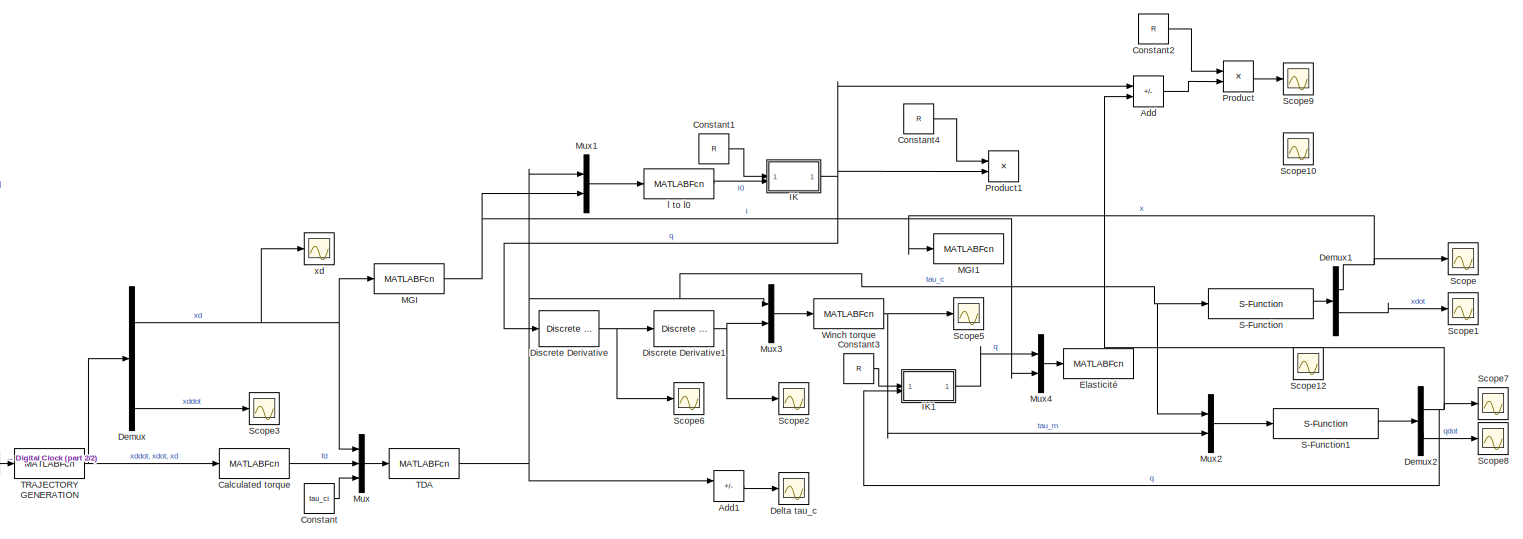
[diagram: root canvas - part 1/2, most of the canvas]
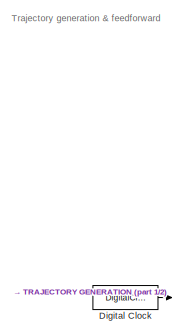
[diagram: root canvas - part 2/2, middle left region]
MODEL slx_36451811acb8
KIND model
CONFIG AbsTol = auto
CONFIG EnableMultiTasking = off
CONFIG FixedStep = 0.001
CONFIG MaxStep = auto
CONFIG MinStep = auto
CONFIG RelTol = 1e-3
CONFIG SampleTimeConstraint = Unconstrained
CONFIG SolverName = FixedStepDiscrete
CONFIG StartTime = 0.0
CONFIG StopTime = 10
BLOCK [Sum] Add
  IconShape = rectangular
  Inputs = +-
BLOCK [Sum] Add1
  IconShape = rectangular
  Inputs = +-
BLOCK [MATLABFcn] Calculated torque
  MATLABFcn = calculated_torque
  Output1D = off
BLOCK [Constant] Constant
  Value = tau_ci
BLOCK [Constant] Constant1
  Value = R
BLOCK [Constant] Constant2
  Value = R
BLOCK [Constant] Constant3
  Value = R
BLOCK [Constant] Constant4
  Value = R
BLOCK [Scope] Delta tau_c
  Floating = off
  NumInputPorts = 1
  ScopeSpecificationString = Simulink.scopes.TimeScopeBlockCfg('CurrentConfiguration', extmgr.ConfigurationSet(extmgr.Configuration('Core','General UI',true),extmgr.Configuration('Core','Source UI',true),extmgr.Configuration('Sources','WiredSimulink',true,'DataLoggingVariableName','ScopeData3'),extmgr.Configuration('Visuals','Time Domain',true,'SerializedDisplays',{struct('MinYLimReal','36.99022','MaxYLimReal','167.088','YLab...<+1512ch>
BLOCK [Demux] Demux
  Outputs = 3
BLOCK [Demux] Demux1
  Outputs = 2
BLOCK [Demux] Demux2
  Outputs = 2
BLOCK [DigitalClock] Digital Clock
  SampleTime = 0.001
BLOCK [Reference] Discrete Derivative  REF=simulink/Discrete/Discrete Derivative
  SourceBlock = simulink/Discrete/Discrete Derivative
  SourceType = Discrete Derivative
BLOCK [Reference] Discrete Derivative1  REF=simulink/Discrete/Discrete Derivative
  SourceBlock = simulink/Discrete/Discrete Derivative
  SourceType = Discrete Derivative
BLOCK [MATLABFcn] Elasticité
  MATLABFcn = Elasticity
  Output1D = off
  OutputDimensions = 8
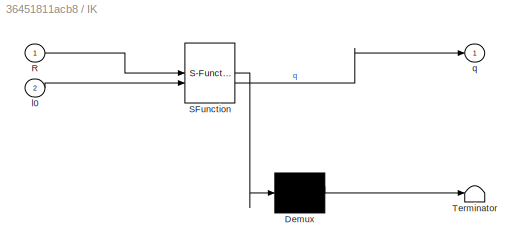
BLOCK [SubSystem] IK
  ErrorFcn = Stateflow.Translate.translate
  PermitHierarchicalResolution = ExplicitOnly
  SFBlockType = MATLAB Function
  TreatAsAtomicUnit = on
BLOCK [Demux] IK/ Demux 
  Outputs = 1
BLOCK [S-Function] IK/ SFunction 
  EnableBusSupport = on
  FunctionName = sf_sfun
  PortCounts = [2 2]
  SFcnIsStateOwnerBlock = off
  SFunctionDeploymentMode = off
  Tag = Stateflow S-Function 14
BLOCK [Terminator] IK/ Terminator 
BLOCK [Inport] IK/R
BLOCK [Inport] IK/l0
  Port = 2
BLOCK [Outport] IK/q
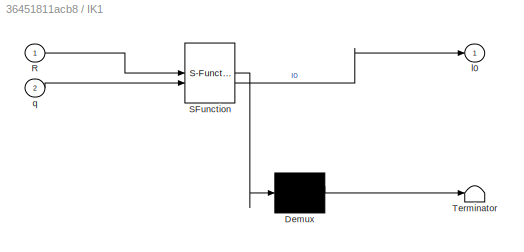
BLOCK [SubSystem] IK1
  ErrorFcn = Stateflow.Translate.translate
  PermitHierarchicalResolution = ExplicitOnly
  SFBlockType = MATLAB Function
  TreatAsAtomicUnit = on
BLOCK [Demux] IK1/ Demux 
  Outputs = 1
BLOCK [S-Function] IK1/ SFunction 
  EnableBusSupport = on
  FunctionName = sf_sfun
  PortCounts = [2 2]
  SFcnIsStateOwnerBlock = off
  SFunctionDeploymentMode = off
  Tag = Stateflow S-Function 1
BLOCK [Terminator] IK1/ Terminator 
BLOCK [Inport] IK1/R
BLOCK [Outport] IK1/l0
BLOCK [Inport] IK1/q
  Port = 2
BLOCK [MATLABFcn] MGI
  MATLABFcn = MGI_Fconstrained
BLOCK [MATLABFcn] MGI1
  MATLABFcn = MGI_Fconstrained
  Output1D = off
  OutputDimensions = 8
BLOCK [Mux] Mux
  DisplayOption = bar
  Inputs = 3
BLOCK [Mux] Mux1
  DisplayOption = bar
  Inputs = 2
BLOCK [Mux] Mux2
  DisplayOption = bar
  Inputs = 2
BLOCK [Mux] Mux3
  DisplayOption = bar
  Inputs = 2
BLOCK [Mux] Mux4
  DisplayOption = bar
  Inputs = 2
BLOCK [Product] Product
  Multiplication = Matrix(*)
BLOCK [Product] Product1
  Multiplication = Matrix(*)
BLOCK [S-Function] S-Function
  EnableBusSupport = off
  FunctionName = Sfunction_platform
  Parameters = [Xi;zeros(6,1)]
  SFcnIsStateOwnerBlock = off
  SFunctionDeploymentMode = off
BLOCK [S-Function] S-Function1
  EnableBusSupport = off
  FunctionName = Sfunction_winch
  Parameters = [qi;zeros(8,1)]
  SFcnIsStateOwnerBlock = off
  SFunctionDeploymentMode = off
BLOCK [Scope] Scope
  Floating = off
  NumInputPorts = 1
  ScopeSpecificationString = Simulink.scopes.TimeScopeBlockCfg('CurrentConfiguration', extmgr.ConfigurationSet(extmgr.Configuration('Core','General UI',true),extmgr.Configuration('Core','Source UI',true),extmgr.Configuration('Sources','WiredSimulink',true),extmgr.Configuration('Visuals','Time Domain',true,'SerializedDisplays',{struct('MinYLimReal','-0.275','MaxYLimReal','2.475','YLabelReal','','MinYLimMag','0.00000','MaxYLimM...<+1423ch>
BLOCK [Scope] Scope1
  Floating = off
  NumInputPorts = 1
  ScopeSpecificationString = Simulink.scopes.TimeScopeBlockCfg('CurrentConfiguration', extmgr.ConfigurationSet(extmgr.Configuration('Core','General UI',true),extmgr.Configuration('Core','Source UI',true),extmgr.Configuration('Sources','WiredSimulink',true,'DataLoggingVariableName','ScopeData1'),extmgr.Configuration('Visuals','Time Domain',true,'SerializedDisplays',{struct('MinYLimReal','-0.00256','MaxYLimReal','0.00148','YLab...<+1496ch>
BLOCK [Scope] Scope10
  Floating = off
  NumInputPorts = 1
  ScopeSpecificationString = Simulink.scopes.TimeScopeBlockCfg('CurrentConfiguration', extmgr.ConfigurationSet(extmgr.Configuration('Core','General UI',true),extmgr.Configuration('Core','Source UI',true),extmgr.Configuration('Sources','WiredSimulink',true,'DataLoggingVariableName','ScopeData2'),extmgr.Configuration('Visuals','Time Domain',true,'SerializedDisplays',{struct('MinYLimReal','19.83053','MaxYLimReal','321.52523','YL...<+1528ch>
BLOCK [Scope] Scope12
  Floating = off
  NumInputPorts = 1
  ScopeSpecificationString = Simulink.scopes.TimeScopeBlockCfg('CurrentConfiguration', extmgr.ConfigurationSet(extmgr.Configuration('Core','General UI',true),extmgr.Configuration('Core','Source UI',true),extmgr.Configuration('Sources','WiredSimulink',true,'DataLoggingVariableName','ScopeData1'),extmgr.Configuration('Visuals','Time Domain',true,'SerializedDisplays',{struct('MinYLimReal','38.03725','MaxYLimReal','177.38163','YL...<+1512ch>
BLOCK [Scope] Scope2
  Floating = off
  NumInputPorts = 1
  ScopeSpecificationString = Simulink.scopes.TimeScopeBlockCfg('CurrentConfiguration', extmgr.ConfigurationSet(extmgr.Configuration('Core','General UI',true),extmgr.Configuration('Core','Source UI',true),extmgr.Configuration('Sources','WiredSimulink',true,'DataLoggingVariableName','ScopeData1'),extmgr.Configuration('Visuals','Time Domain',true,'SerializedDisplays',{struct('MinYLimReal','-0.00252','MaxYLimReal','0.0013','YLabe...<+1568ch>
BLOCK [Scope] Scope3
  Floating = off
  NumInputPorts = 1
  ScopeSpecificationString = Simulink.scopes.TimeScopeBlockCfg('CurrentConfiguration', extmgr.ConfigurationSet(extmgr.Configuration('Core','General UI',true),extmgr.Configuration('Core','Source UI',true),extmgr.Configuration('Sources','WiredSimulink',true,'DataLoggingVariableName','ScopeData2'),extmgr.Configuration('Visuals','Time Domain',true,'SerializedDisplays',{struct('MinYLimReal','-0.082','MaxYLimReal','0.082','YLabelRe...<+1486ch>
BLOCK [Scope] Scope5
  Floating = off
  NumInputPorts = 1
  ScopeSpecificationString = Simulink.scopes.TimeScopeBlockCfg('CurrentConfiguration', extmgr.ConfigurationSet(extmgr.Configuration('Core','General UI',true),extmgr.Configuration('Core','Source UI',true),extmgr.Configuration('Sources','WiredSimulink',true,'DataLoggingVariableName','ScopeData2'),extmgr.Configuration('Visuals','Time Domain',true,'SerializedDisplays',{struct('MinYLimReal','0.10863','MaxYLimReal','0.53518','YLabe...<+1516ch>
BLOCK [Scope] Scope6
  Floating = off
  NumInputPorts = 1
  ScopeSpecificationString = Simulink.scopes.TimeScopeBlockCfg('CurrentConfiguration', extmgr.ConfigurationSet(extmgr.Configuration('Core','General UI',true),extmgr.Configuration('Core','Source UI',true),extmgr.Configuration('Sources','WiredSimulink',true,'DataLoggingVariableName','ScopeData3'),extmgr.Configuration('Visuals','Time Domain',true,'SerializedDisplays',{struct('MinYLimReal','-36.28749','MaxYLimReal','30.75581','YL...<+1568ch>
BLOCK [Scope] Scope7
  Floating = off
  NumInputPorts = 1
  ScopeSpecificationString = Simulink.scopes.TimeScopeBlockCfg('CurrentConfiguration', extmgr.ConfigurationSet(extmgr.Configuration('Core','General UI',true),extmgr.Configuration('Core','Source UI',true),extmgr.Configuration('Sources','WiredSimulink',true,'DataLoggingVariableName','ScopeData4'),extmgr.Configuration('Visuals','Time Domain',true,'SerializedDisplays',{struct('MinYLimReal','1338.72514','MaxYLimReal','1380.31008',...<+1463ch>
BLOCK [Scope] Scope8
  Floating = off
  NumInputPorts = 1
  ScopeSpecificationString = Simulink.scopes.TimeScopeBlockCfg('CurrentConfiguration', extmgr.ConfigurationSet(extmgr.Configuration('Core','General UI',true),extmgr.Configuration('Core','Source UI',true),extmgr.Configuration('Sources','WiredSimulink',true,'DataLoggingVariableName','ScopeData5'),extmgr.Configuration('Visuals','Time Domain',true,'SerializedDisplays',{struct('MinYLimReal','-881.28578','MaxYLimReal','100.26152','...<+1524ch>
BLOCK [Scope] Scope9
  Floating = off
  NumInputPorts = 1
  ScopeSpecificationString = Simulink.scopes.TimeScopeBlockCfg('CurrentConfiguration', extmgr.ConfigurationSet(extmgr.Configuration('Core','General UI',true),extmgr.Configuration('Core','Source UI',true),extmgr.Configuration('Sources','WiredSimulink',true,'DataLoggingVariableName','ScopeData1'),extmgr.Configuration('Visuals','Time Domain',true,'SerializedDisplays',{struct('MinYLimReal','-0.0000000000000017','MaxYLimReal','0.0...<+1620ch>
BLOCK [MATLABFcn] TDA
  MATLABFcn = TDA
  Output1D = off
  OutputDimensions = 8
BLOCK [MATLABFcn] TRAJECTORY GENERATION
  MATLABFcn = Trajectory_Generation
  Output1D = off
BLOCK [MATLABFcn] Winch torque
  MATLABFcn = Winch_torque
BLOCK [MATLABFcn] l to l0
  MATLABFcn = l_to_l0
  Output1D = off
  OutputDimensions = 8
  OutputSignalType = real
BLOCK [Scope] xd
  Floating = off
  NumInputPorts = 1
  ScopeSpecificationString = Simulink.scopes.TimeScopeBlockCfg('CurrentConfiguration', extmgr.ConfigurationSet(extmgr.Configuration('Core','General UI',true),extmgr.Configuration('Core','Source UI',true),extmgr.Configuration('Sources','WiredSimulink',true,'DataLoggingVariableName','ScopeData3'),extmgr.Configuration('Visuals','Time Domain',true,'SerializedDisplays',{struct('MinYLimReal','-0.3125','MaxYLimReal','2.8125','YLabel...<+1474ch>
ANNOTATION (root): Trajectory generation & feedforward
LINE Add1:1 -> Delta tau_c:1
LINE Add:1 -> Product:2
LINE Calculated torque:1 -> Mux:2
LINE Constant1:1 -> IK:1
LINE Constant2:1 -> Product:1
LINE Constant3:1 -> IK1:1
LINE Constant4:1 -> Product1:1
LINE Constant:1 -> Mux:3
NET Demux1:1 -> MGI1:1, Scope:1
LINE Demux1:2 -> Scope1:1
NET Demux2:1 -> Add:2, IK1:2, Scope7:1
LINE Demux2:2 -> Scope8:1
NET Demux:1 -> MGI:1, Mux:1, xd:1
LINE Demux:3 -> Scope3:1
LINE Digital Clock:1 -> TRAJECTORY GENERATION:1
NET Discrete Derivative1:1 -> Mux3:2, Scope2:1
NET Discrete Derivative:1 -> Discrete Derivative1:1, Scope6:1
LINE IK1:1 -> Mux4:1
NET IK:1 -> Add:1, Discrete Derivative:1, Product1:2
NET MGI:1 -> Mux1:2, Mux4:2
LINE Mux1:1 -> l to l0:1
LINE Mux2:1 -> S-Function1:1
LINE Mux3:1 -> Winch torque:1
LINE Mux4:1 -> Elasticité:1
LINE Mux:1 -> TDA:1
LINE Product:1 -> Scope9:1
LINE S-Function1:1 -> Demux2:1
LINE S-Function:1 -> Demux1:1
NET TDA:1 -> Add1:1, Mux1:1, Mux2:1, Mux3:1, S-Function:1
NET TRAJECTORY GENERATION:1 -> Calculated torque:1, Demux:1
NET Winch torque:1 -> Mux2:2, Scope5:1
LINE l to l0:1 -> IK:2
note: NET lines group one-source signal fan-out (src -> all destinations, sorted); 1:1 wires keep LINE
CHART IK states=1 transitions=1
  STATE_LABEL 'eML_blk_kernel()'
  STATE_LABEL 'SCRIPT:\nfunction q = fcn(R, l0)\n\nq = R\\l0;\n\n'
CHART IK1 states=1 transitions=1
  STATE_LABEL 'eML_blk_kernel()'
  STATE_LABEL 'SCRIPT:\nfunction l0 = fcn(R, q)\n\nl0 = R*q;\n\n'
CHART  states=0 transitions=0
CHART  states=0 transitions=0
